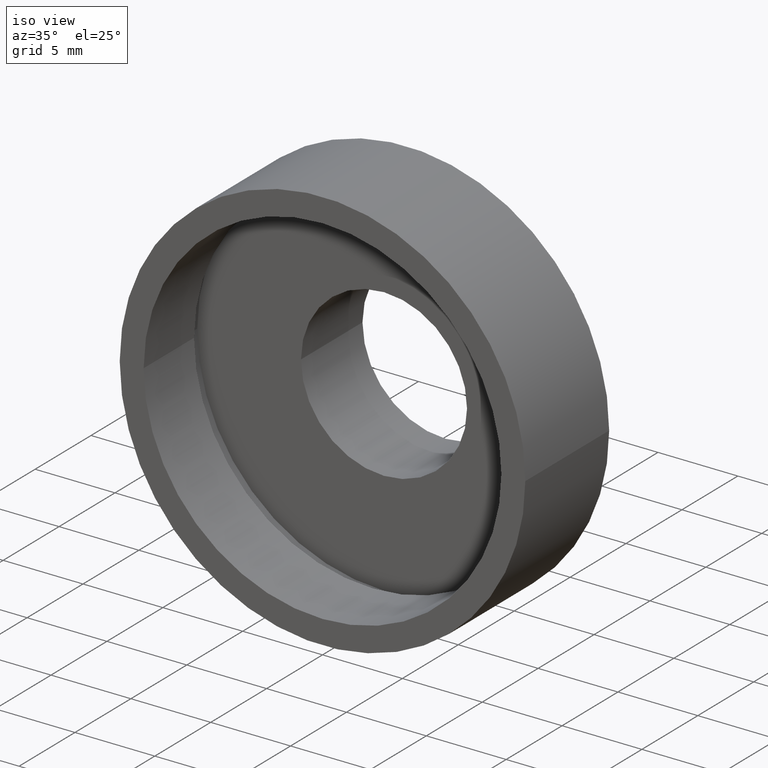
[diagram: clean part render]
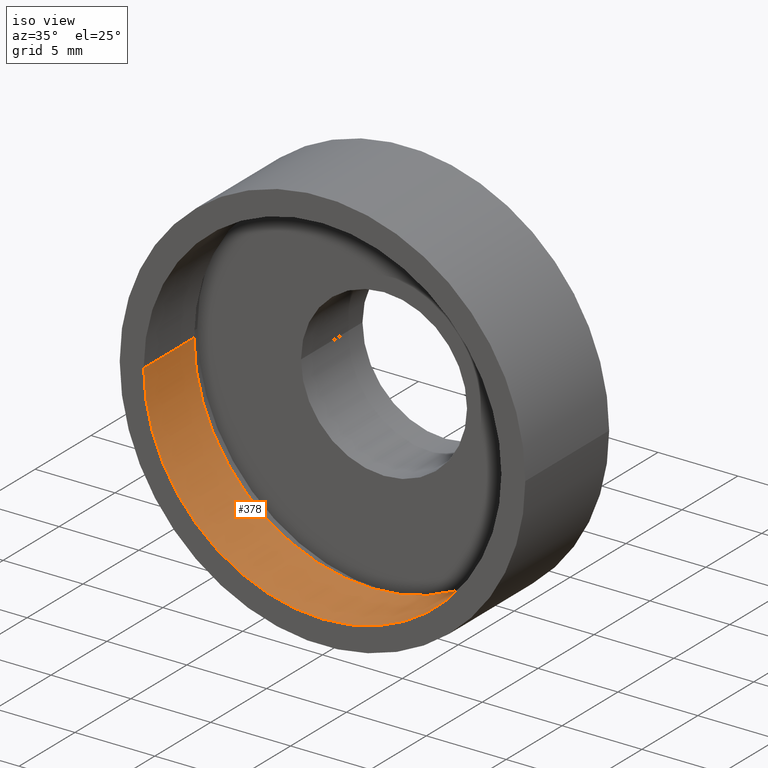
[diagram: same view with one face highlighted and labeled with its STEP entity id]
A machine part, iso view. The second image highlights one B-rep face of the part: STEP entity #378.
In plain terms, the highlighted cylindrical surface (partial cylindrical patch) has radius 11.2 mm, axis along (-0, 1, -0).
Its self-contained STEP definition (entity closure, byte-faithful):
#15 = VECTOR ( 'NONE', #207, 1000.000000000000000 ) ;
#51 = DIRECTION ( 'NONE',  ( -1.224646799147351000E-016, 1.000000000000000000, -0.0000000000000000000 ) ) ;
#85 = CYLINDRICAL_SURFACE ( 'NONE', #409, 11.19999999999999900 ) ;
#102 = VERTEX_POINT ( 'NONE', #445 ) ;
#124 = VERTEX_POINT ( 'NONE', #322 ) ;
#134 = AXIS2_PLACEMENT_3D ( 'NONE', #581, #333, #395 ) ;
#146 = CARTESIAN_POINT ( 'NONE',  ( -11.19999999999999800, -1.371604415045033100E-015, 0.0000000000000000000 ) ) ;
#153 = ORIENTED_EDGE ( 'NONE', *, *, #557, .F. ) ;
#157 = CIRCLE ( 'NONE', #134, 11.19999999999999900 ) ;
#179 = ORIENTED_EDGE ( 'NONE', *, *, #463, .T. ) ;
#201 = AXIS2_PLACEMENT_3D ( 'NONE', #260, #51, #263 ) ;
#207 = DIRECTION ( 'NONE',  ( -1.224646799147351000E-016, 1.000000000000000000, -0.0000000000000000000 ) ) ;
#260 = CARTESIAN_POINT ( 'NONE',  ( 2.067940818438636100E-015, 0.0000000000000000000, 0.0000000000000000000 ) ) ;
#263 = DIRECTION ( 'NONE',  ( -1.000000000000000000, -1.224646799147351000E-016, 0.0000000000000000000 ) ) ;
#296 = DIRECTION ( 'NONE',  ( -1.224646799147351000E-016, 1.000000000000000000, -0.0000000000000000000 ) ) ;
#302 = VERTEX_POINT ( 'NONE', #550 ) ;
#322 = CARTESIAN_POINT ( 'NONE',  ( 11.20000000000000100, 1.371604415045033100E-015, 1.371604415045035500E-015 ) ) ;
#333 = DIRECTION ( 'NONE',  ( -1.224646799147351000E-016, 1.000000000000000000, -0.0000000000000000000 ) ) ;
#335 = CARTESIAN_POINT ( 'NONE',  ( 0.0000000000000000000, 16.88601823708207700, 0.0000000000000000000 ) ) ;
#337 = LINE ( 'NONE', #528, #15 ) ;
#363 = CIRCLE ( 'NONE', #201, 11.19999999999999900 ) ;
#378 = ADVANCED_FACE ( 'NONE', ( #492 ), #85, .F. ) ;
#385 = CARTESIAN_POINT ( 'NONE',  ( 11.19999999999999900, 16.88601823708207700, 1.371604415045035500E-015 ) ) ;
#388 = ORIENTED_EDGE ( 'NONE', *, *, #485, .T. ) ;
#393 = EDGE_LOOP ( 'NONE', ( #153, #179, #388, #520 ) ) ;
#395 = DIRECTION ( 'NONE',  ( -1.000000000000000000, -1.548860246407863600E-016, 0.0000000000000000000 ) ) ;
#409 = AXIS2_PLACEMENT_3D ( 'NONE', #335, #296, #460 ) ;
#445 = CARTESIAN_POINT ( 'NONE',  ( 11.20000000000000100, 4.499999999999999100, 1.371604415045035500E-015 ) ) ;
#448 = LINE ( 'NONE', #385, #621 ) ;
#460 = DIRECTION ( 'NONE',  ( -1.000000000000000000, 0.0000000000000000000, 0.0000000000000000000 ) ) ;
#463 = EDGE_CURVE ( 'NONE', #124, #102, #448, .T. ) ;
#475 = VERTEX_POINT ( 'NONE', #146 ) ;
#485 = EDGE_CURVE ( 'NONE', #102, #302, #157, .T. ) ;
#492 = FACE_OUTER_BOUND ( 'NONE', #393, .T. ) ;
#496 = EDGE_CURVE ( 'NONE', #475, #302, #337, .T. ) ;
#520 = ORIENTED_EDGE ( 'NONE', *, *, #496, .F. ) ;
#528 = CARTESIAN_POINT ( 'NONE',  ( -11.19999999999999900, 16.88601823708207700, 0.0000000000000000000 ) ) ;
#550 = CARTESIAN_POINT ( 'NONE',  ( -11.19999999999999800, 4.499999999999995600, 0.0000000000000000000 ) ) ;
#557 = EDGE_CURVE ( 'NONE', #124, #475, #363, .T. ) ;
#560 = DIRECTION ( 'NONE',  ( -1.224646799147351000E-016, 1.000000000000000000, -0.0000000000000000000 ) ) ;
#581 = CARTESIAN_POINT ( 'NONE',  ( 1.516849758822328300E-015, 4.499999999999997300, 0.0000000000000000000 ) ) ;
#621 = VECTOR ( 'NONE', #560, 1000.000000000000000 ) ;